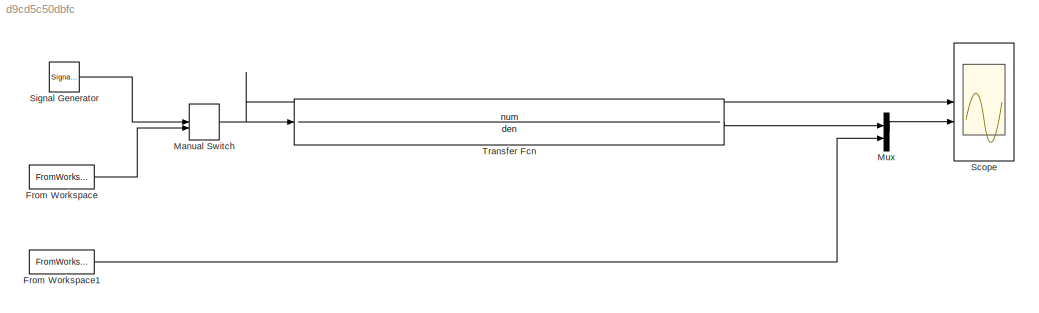
MODEL slx_d9cd5c50dbfc
KIND model
CONFIG AbsTol = auto
CONFIG EnableMultiTasking = off
CONFIG FixedStep = 0.000001
CONFIG MaxStep = auto
CONFIG MinStep = auto
CONFIG RelTol = 1e-3
CONFIG SampleTimeConstraint = Unconstrained
CONFIG SolverName = ode3
CONFIG StartTime = 0.0
CONFIG StopTime = Zeit(end)
BLOCK [FromWorkspace] From Workspace
  VariableName = [Zeit Eingang]
BLOCK [FromWorkspace] From Workspace1
  VariableName = [Zeit Ausgang]
BLOCK [ManualSwitch] Manual Switch
  CurrentSetting = 0
BLOCK [Mux] Mux
  DisplayOption = bar
  Inputs = 2
BLOCK [Scope] Scope
  Floating = off
  NumInputPorts = 2
  ScopeSpecificationString = Simulink.scopes.TimeScopeBlockCfg('CurrentConfiguration', extmgr.ConfigurationSet(extmgr.Configuration('Core','General UI',true),extmgr.Configuration('Core','Source UI',true),extmgr.Configuration('Sources','WiredSimulink',true),extmgr.Configuration('Visuals','Time Domain',true,'SerializedDisplays',{struct('MinYLimReal','-0.49408','MaxYLimReal','0.63536','YLabelReal','','MinYLimMag','0.00000','MaxY...<+1480ch>
BLOCK [SignalGenerator] Signal Generator 
  Units = rad/sec
BLOCK [TransferFcn] Transfer Fcn
  Denominator = den
  Numerator = num
LINE From Workspace1:1 -> Mux:2
LINE From Workspace:1 -> Manual Switch:2
NET Manual Switch:1 -> Scope:1, Transfer Fcn:1
LINE Mux:1 -> Scope:2
LINE Signal Generator :1 -> Manual Switch:1
LINE Transfer Fcn:1 -> Mux:1
note: NET lines group one-source signal fan-out (src -> all destinations, sorted); 1:1 wires keep LINE
